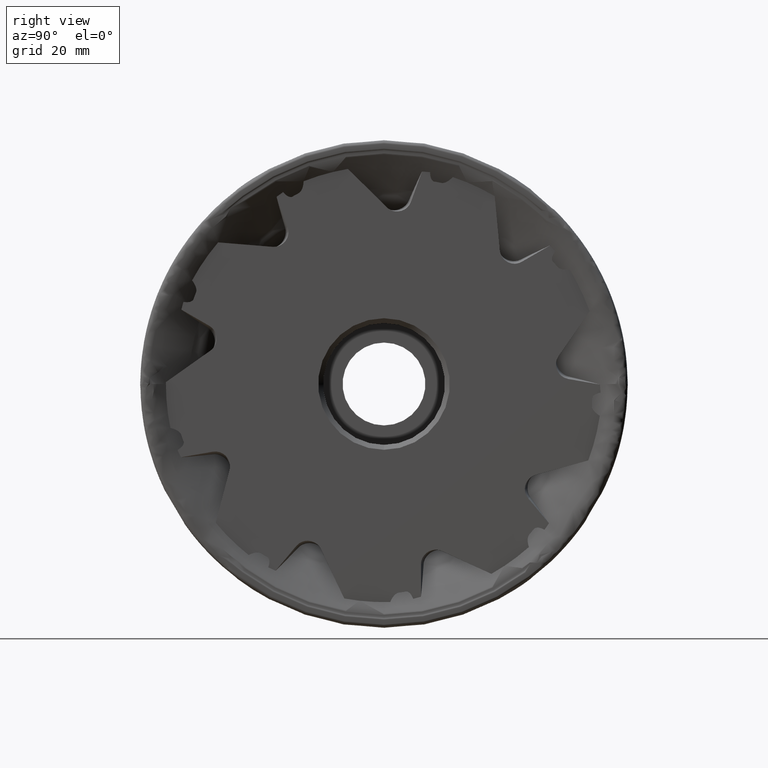
[diagram: clean part render]
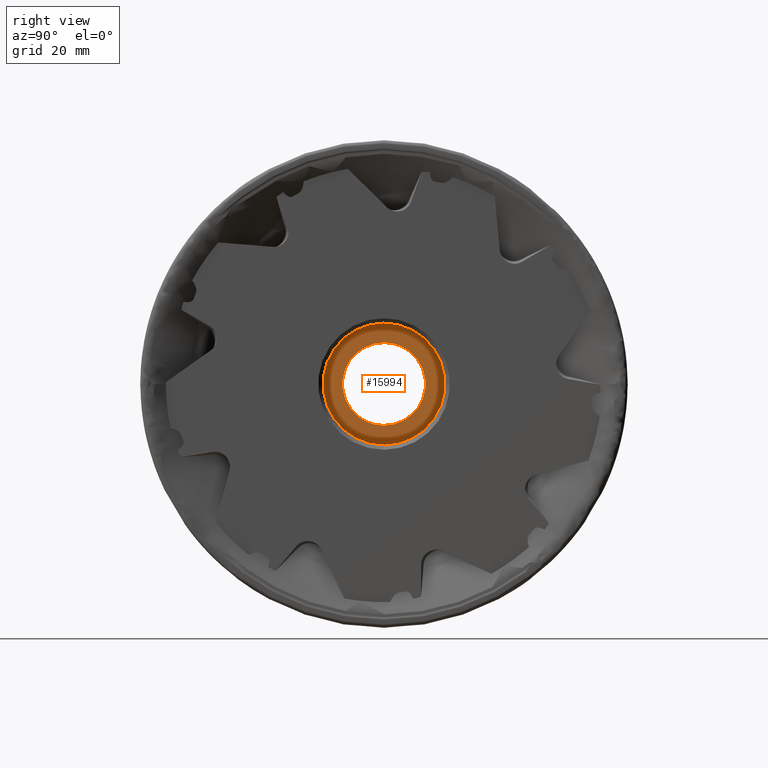
[diagram: same view with one face highlighted and labeled with its STEP entity id]
A machine part, right view. The second image highlights one B-rep face of the part: STEP entity #15994.
In plain terms, the highlighted planar face has unit normal (-1, 0, 0).
Its self-contained STEP definition (entity closure, byte-faithful):
#324 = CARTESIAN_POINT ( 'NONE',  ( -13.50000000000000000, 0.0000000000000000000, 0.0000000000000000000 ) ) ;
#573 = AXIS2_PLACEMENT_3D ( 'NONE', #24815, #2512, #26746 ) ;
#1521 = AXIS2_PLACEMENT_3D ( 'NONE', #15568, #2389, #6770 ) ;
#2389 = DIRECTION ( 'NONE',  ( 1.000000000000000000, -0.0000000000000000000, -0.0000000000000000000 ) ) ;
#2512 = DIRECTION ( 'NONE',  ( 1.000000000000000000, -0.0000000000000000000, -0.0000000000000000000 ) ) ;
#2909 = AXIS2_PLACEMENT_3D ( 'NONE', #324, #22352, #18052 ) ;
#3358 = PLANE ( 'NONE',  #20181 ) ;
#3517 = EDGE_CURVE ( 'NONE', #12967, #23936, #20789, .T. ) ;
#3776 = EDGE_CURVE ( 'NONE', #25310, #18609, #19769, .T. ) ;
#4389 = ORIENTED_EDGE ( 'NONE', *, *, #21742, .T. ) ;
#4730 = DIRECTION ( 'NONE',  ( 1.000000000000000000, -0.0000000000000000000, -0.0000000000000000000 ) ) ;
#6770 = DIRECTION ( 'NONE',  ( 0.0000000000000000000, 0.0000000000000000000, -1.000000000000000000 ) ) ;
#6988 = CIRCLE ( 'NONE', #1521, 12.49999999999999800 ) ;
#7767 = CARTESIAN_POINT ( 'NONE',  ( -13.50000000000000000, 12.49999999999999800, 0.0000000000000000000 ) ) ;
#8110 = EDGE_CURVE ( 'NONE', #23936, #12967, #12702, .T. ) ;
#9334 = ORIENTED_EDGE ( 'NONE', *, *, #3776, .T. ) ;
#12702 = CIRCLE ( 'NONE', #573, 8.499999999999998200 ) ;
#12861 = AXIS2_PLACEMENT_3D ( 'NONE', #17947, #4730, #22338 ) ;
#12967 = VERTEX_POINT ( 'NONE', #18888 ) ;
#14212 = FACE_OUTER_BOUND ( 'NONE', #28231, .T. ) ;
#15535 = ORIENTED_EDGE ( 'NONE', *, *, #3517, .F. ) ;
#15568 = CARTESIAN_POINT ( 'NONE',  ( -13.50000000000000000, 0.0000000000000000000, 0.0000000000000000000 ) ) ;
#15642 = FACE_BOUND ( 'NONE', #21420, .T. ) ;
#15994 = ADVANCED_FACE ( 'NONE', ( #15642, #14212 ), #3358, .F. ) ;
#15995 = CARTESIAN_POINT ( 'NONE',  ( -13.50000000000000000, 0.0000000000000000000, -12.49999999999999800 ) ) ;
#17947 = CARTESIAN_POINT ( 'NONE',  ( -13.50000000000000000, 0.0000000000000000000, 0.0000000000000000000 ) ) ;
#18052 = DIRECTION ( 'NONE',  ( 0.0000000000000000000, 0.0000000000000000000, -1.000000000000000000 ) ) ;
#18609 = VERTEX_POINT ( 'NONE', #15995 ) ;
#18888 = CARTESIAN_POINT ( 'NONE',  ( -13.50000000000000000, 0.0000000000000000000, -8.499999999999998200 ) ) ;
#19769 = CIRCLE ( 'NONE', #2909, 12.49999999999999800 ) ;
#20181 = AXIS2_PLACEMENT_3D ( 'NONE', #7767, #20875, #25401 ) ;
#20789 = CIRCLE ( 'NONE', #12861, 8.499999999999998200 ) ;
#20875 = DIRECTION ( 'NONE',  ( -1.000000000000000000, 0.0000000000000000000, 0.0000000000000000000 ) ) ;
#21420 = EDGE_LOOP ( 'NONE', ( #15535, #25572 ) ) ;
#21742 = EDGE_CURVE ( 'NONE', #18609, #25310, #6988, .T. ) ;
#22338 = DIRECTION ( 'NONE',  ( 0.0000000000000000000, 0.0000000000000000000, -1.000000000000000000 ) ) ;
#22352 = DIRECTION ( 'NONE',  ( 1.000000000000000000, -0.0000000000000000000, -0.0000000000000000000 ) ) ;
#23936 = VERTEX_POINT ( 'NONE', #23947 ) ;
#23947 = CARTESIAN_POINT ( 'NONE',  ( -13.50000000000000000, 1.040949779275249900E-015, 8.499999999999998200 ) ) ;
#24815 = CARTESIAN_POINT ( 'NONE',  ( -13.50000000000000000, 0.0000000000000000000, 0.0000000000000000000 ) ) ;
#25310 = VERTEX_POINT ( 'NONE', #25377 ) ;
#25377 = CARTESIAN_POINT ( 'NONE',  ( -13.50000000000000000, 1.530808498934191300E-015, 12.49999999999999800 ) ) ;
#25401 = DIRECTION ( 'NONE',  ( 0.0000000000000000000, 0.0000000000000000000, 1.000000000000000000 ) ) ;
#25572 = ORIENTED_EDGE ( 'NONE', *, *, #8110, .F. ) ;
#26746 = DIRECTION ( 'NONE',  ( 0.0000000000000000000, 0.0000000000000000000, -1.000000000000000000 ) ) ;
#28231 = EDGE_LOOP ( 'NONE', ( #4389, #9334 ) ) ;